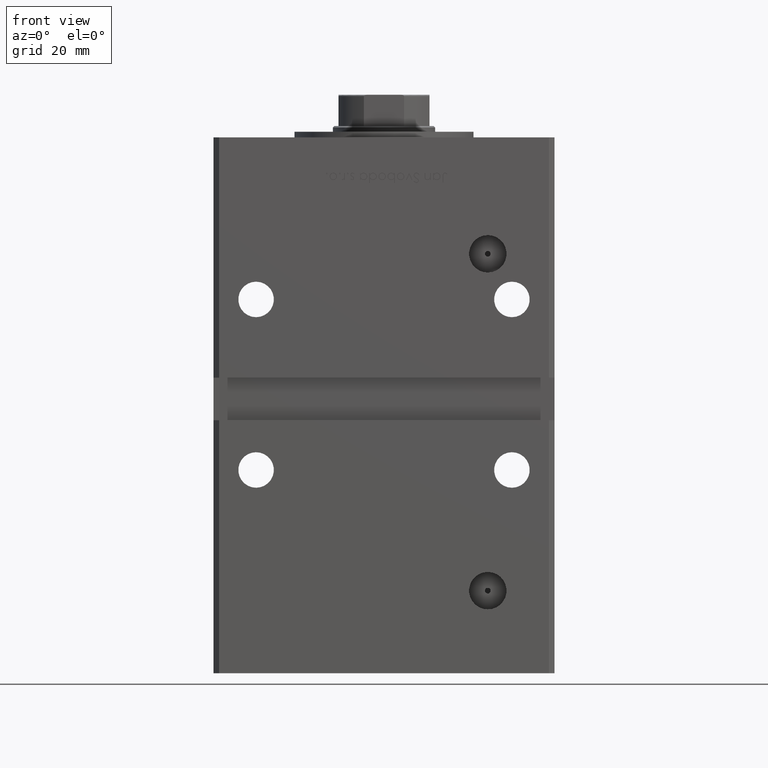
[diagram: clean part render]
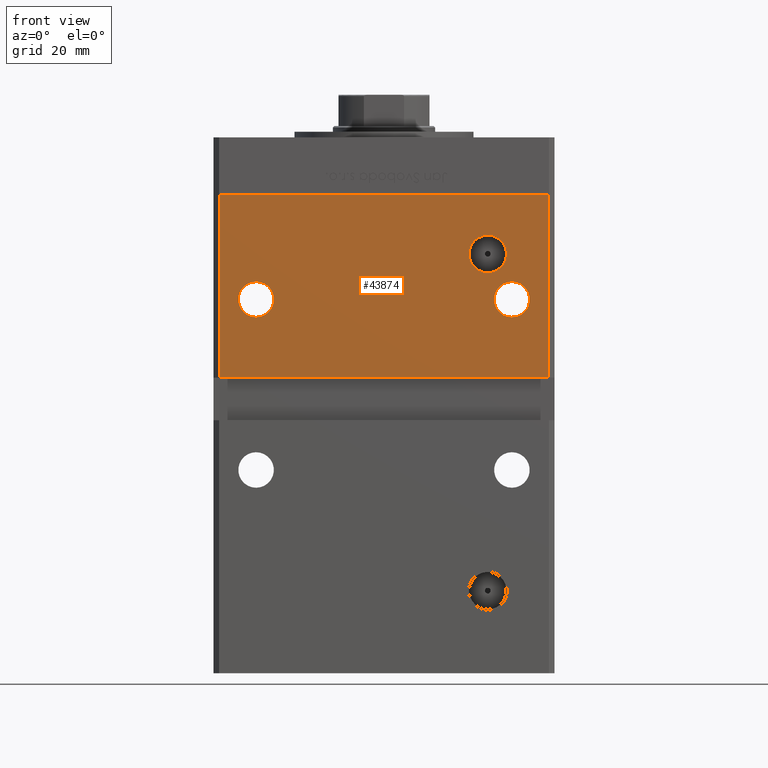
[diagram: same view with one face highlighted and labeled with its STEP entity id]
A machine part, front view. The second image highlights one B-rep face of the part: STEP entity #43874.
In plain terms, the highlighted planar face has unit normal (0, 1, 0).
Its self-contained STEP definition (entity closure, byte-faithful):
#412 = PLANE ( 'NONE',  #14098 ) ;
#826 = LINE ( 'NONE', #17443, #2035 ) ;
#1027 = EDGE_CURVE ( 'NONE', #3265, #3108, #50694, .T. ) ;
#1348 = EDGE_LOOP ( 'NONE', ( #35359, #8984 ) ) ;
#1349 = CARTESIAN_POINT ( 'NONE',  ( -45.00000000000000000, -50.99999999999999289, 105.2500000000000000 ) ) ;
#2035 = VECTOR ( 'NONE', #10198, 1000.000000000000000 ) ;
#3108 = VERTEX_POINT ( 'NONE', #3445 ) ;
#3203 = AXIS2_PLACEMENT_3D ( 'NONE', #32464, #36756, #7816 ) ;
#3265 = VERTEX_POINT ( 'NONE', #50325 ) ;
#3445 = CARTESIAN_POINT ( 'NONE',  ( 57.99999999999997868, -50.99999999999999289, 148.5000000000000000 ) ) ;
#3653 = VERTEX_POINT ( 'NONE', #11358 ) ;
#3760 = EDGE_CURVE ( 'NONE', #3265, #4888, #35739, .T. ) ;
#4209 = ORIENTED_EDGE ( 'NONE', *, *, #37161, .T. ) ;
#4888 = VERTEX_POINT ( 'NONE', #26612 ) ;
#5449 = VECTOR ( 'NONE', #38817, 1000.000000000000000 ) ;
#5486 = AXIS2_PLACEMENT_3D ( 'NONE', #50659, #38589, #9391 ) ;
#7413 = DIRECTION ( 'NONE',  ( 0.000000000000000000, -0.000000000000000000, 1.000000000000000000 ) ) ;
#7647 = CIRCLE ( 'NONE', #28177, 6.579999999999988525 ) ;
#7758 = EDGE_CURVE ( 'NONE', #36962, #49146, #39172, .T. ) ;
#7816 = DIRECTION ( 'NONE',  ( 0.000000000000000000, 0.000000000000000000, -1.000000000000000000 ) ) ;
#8652 = VERTEX_POINT ( 'NONE', #39925 ) ;
#8984 = ORIENTED_EDGE ( 'NONE', *, *, #24116, .T. ) ;
#9391 = DIRECTION ( 'NONE',  ( 0.000000000000000000, 0.000000000000000000, 1.000000000000000000 ) ) ;
#10148 = LINE ( 'NONE', #42847, #5449 ) ;
#10198 = DIRECTION ( 'NONE',  ( -1.000000000000000000, -0.000000000000000000, -0.000000000000000000 ) ) ;
#11358 = CARTESIAN_POINT ( 'NONE',  ( 45.00000000000000000, -50.99999999999999289, 105.2500000000000000 ) ) ;
#11667 = ORIENTED_EDGE ( 'NONE', *, *, #3760, .T. ) ;
#11694 = FACE_BOUND ( 'NONE', #1348, .T. ) ;
#12333 = CIRCLE ( 'NONE', #5486, 6.250000000000005329 ) ;
#12967 = CIRCLE ( 'NONE', #42912, 6.250000000000005329 ) ;
#13383 = EDGE_CURVE ( 'NONE', #49146, #36962, #7647, .T. ) ;
#14098 = AXIS2_PLACEMENT_3D ( 'NONE', #44127, #48945, #7413 ) ;
#14981 = AXIS2_PLACEMENT_3D ( 'NONE', #36953, #41248, #45526 ) ;
#15063 = DIRECTION ( 'NONE',  ( 0.000000000000000000, 1.000000000000000000, 0.000000000000000000 ) ) ;
#15938 = EDGE_LOOP ( 'NONE', ( #34543, #34639 ) ) ;
#16040 = ORIENTED_EDGE ( 'NONE', *, *, #1027, .F. ) ;
#17443 = CARTESIAN_POINT ( 'NONE',  ( -59.99999999999998579, -50.99999999999999289, 83.99999999999998579 ) ) ;
#18573 = DIRECTION ( 'NONE',  ( 0.000000000000000000, 0.000000000000000000, -1.000000000000000000 ) ) ;
#19181 = VERTEX_POINT ( 'NONE', #1349 ) ;
#19864 = DIRECTION ( 'NONE',  ( 0.000000000000000000, 0.000000000000000000, 1.000000000000000000 ) ) ;
#19989 = FACE_OUTER_BOUND ( 'NONE', #37995, .T. ) ;
#20187 = VERTEX_POINT ( 'NONE', #39808 ) ;
#23198 = ORIENTED_EDGE ( 'NONE', *, *, #34782, .T. ) ;
#23852 = VERTEX_POINT ( 'NONE', #34806 ) ;
#24116 = EDGE_CURVE ( 'NONE', #19181, #23852, #12967, .T. ) ;
#25423 = AXIS2_PLACEMENT_3D ( 'NONE', #27905, #15063, #19864 ) ;
#26612 = CARTESIAN_POINT ( 'NONE',  ( -57.99999999999997868, -50.99999999999999289, 83.99999999999998579 ) ) ;
#27905 = CARTESIAN_POINT ( 'NONE',  ( 45.00000000000000000, -50.99999999999999289, 111.5000000000000000 ) ) ;
#28177 = AXIS2_PLACEMENT_3D ( 'NONE', #38690, #31422, #18573 ) ;
#28564 = FACE_BOUND ( 'NONE', #46085, .T. ) ;
#29785 = CARTESIAN_POINT ( 'NONE',  ( -57.99999999999997868, -50.99999999999999289, 148.5000000000000000 ) ) ;
#30256 = EDGE_CURVE ( 'NONE', #3108, #8652, #10148, .T. ) ;
#30938 = CARTESIAN_POINT ( 'NONE',  ( -57.99999999999997868, -50.99999999999999289, 148.5000000000000000 ) ) ;
#31422 = DIRECTION ( 'NONE',  ( -0.000000000000000000, 1.000000000000000000, -0.000000000000000000 ) ) ;
#31464 = EDGE_CURVE ( 'NONE', #8652, #4888, #826, .T. ) ;
#31524 = DIRECTION ( 'NONE',  ( 0.000000000000000000, 1.000000000000000000, 0.000000000000000000 ) ) ;
#32464 = CARTESIAN_POINT ( 'NONE',  ( 36.49999999999997868, -50.99999999999999289, 127.5000000000000000 ) ) ;
#32586 = FACE_BOUND ( 'NONE', #15938, .T. ) ;
#34543 = ORIENTED_EDGE ( 'NONE', *, *, #13383, .T. ) ;
#34639 = ORIENTED_EDGE ( 'NONE', *, *, #7758, .T. ) ;
#34782 = EDGE_CURVE ( 'NONE', #3653, #20187, #36356, .T. ) ;
#34806 = CARTESIAN_POINT ( 'NONE',  ( -45.00000000000000000, -50.99999999999999289, 117.7500000000000142 ) ) ;
#35359 = ORIENTED_EDGE ( 'NONE', *, *, #41086, .T. ) ;
#35713 = VECTOR ( 'NONE', #47284, 1000.000000000000000 ) ;
#35739 = LINE ( 'NONE', #30938, #35713 ) ;
#36356 = CIRCLE ( 'NONE', #14981, 6.250000000000005329 ) ;
#36560 = VECTOR ( 'NONE', #46664, 1000.000000000000000 ) ;
#36668 = ORIENTED_EDGE ( 'NONE', *, *, #31464, .F. ) ;
#36756 = DIRECTION ( 'NONE',  ( -0.000000000000000000, 1.000000000000000000, -0.000000000000000000 ) ) ;
#36953 = CARTESIAN_POINT ( 'NONE',  ( 45.00000000000000000, -50.99999999999999289, 111.5000000000000000 ) ) ;
#36962 = VERTEX_POINT ( 'NONE', #40118 ) ;
#37161 = EDGE_CURVE ( 'NONE', #20187, #3653, #48541, .T. ) ;
#37860 = CARTESIAN_POINT ( 'NONE',  ( 36.49999999999997868, -50.99999999999999289, 120.9200000000000159 ) ) ;
#37995 = EDGE_LOOP ( 'NONE', ( #11667, #36668, #47128, #16040 ) ) ;
#38522 = CARTESIAN_POINT ( 'NONE',  ( -45.00000000000000000, -50.99999999999999289, 111.5000000000000000 ) ) ;
#38589 = DIRECTION ( 'NONE',  ( 0.000000000000000000, 1.000000000000000000, 0.000000000000000000 ) ) ;
#38690 = CARTESIAN_POINT ( 'NONE',  ( 36.49999999999997868, -50.99999999999999289, 127.5000000000000000 ) ) ;
#38817 = DIRECTION ( 'NONE',  ( -0.000000000000000000, -0.000000000000000000, -1.000000000000000000 ) ) ;
#39172 = CIRCLE ( 'NONE', #3203, 6.579999999999988525 ) ;
#39808 = CARTESIAN_POINT ( 'NONE',  ( 45.00000000000000000, -50.99999999999999289, 117.7500000000000142 ) ) ;
#39925 = CARTESIAN_POINT ( 'NONE',  ( 57.99999999999997868, -50.99999999999999289, 83.99999999999998579 ) ) ;
#40118 = CARTESIAN_POINT ( 'NONE',  ( 36.49999999999997868, -50.99999999999999289, 134.0800000000000125 ) ) ;
#41086 = EDGE_CURVE ( 'NONE', #23852, #19181, #12333, .T. ) ;
#41248 = DIRECTION ( 'NONE',  ( 0.000000000000000000, 1.000000000000000000, 0.000000000000000000 ) ) ;
#42847 = CARTESIAN_POINT ( 'NONE',  ( 57.99999999999997868, -50.99999999999999289, 148.5000000000000000 ) ) ;
#42912 = AXIS2_PLACEMENT_3D ( 'NONE', #38522, #31524, #51372 ) ;
#43874 = ADVANCED_FACE ( 'NONE', ( #28564, #11694, #19989, #32586 ), #412, .F. ) ;
#44127 = CARTESIAN_POINT ( 'NONE',  ( -57.99999999999997868, -50.99999999999999289, 148.5000000000000000 ) ) ;
#45526 = DIRECTION ( 'NONE',  ( 0.000000000000000000, 0.000000000000000000, 1.000000000000000000 ) ) ;
#46085 = EDGE_LOOP ( 'NONE', ( #4209, #23198 ) ) ;
#46664 = DIRECTION ( 'NONE',  ( 1.000000000000000000, 0.000000000000000000, 0.000000000000000000 ) ) ;
#47128 = ORIENTED_EDGE ( 'NONE', *, *, #30256, .F. ) ;
#47284 = DIRECTION ( 'NONE',  ( -0.000000000000000000, -0.000000000000000000, -1.000000000000000000 ) ) ;
#48541 = CIRCLE ( 'NONE', #25423, 6.250000000000005329 ) ;
#48945 = DIRECTION ( 'NONE',  ( 0.000000000000000000, 1.000000000000000000, 0.000000000000000000 ) ) ;
#49146 = VERTEX_POINT ( 'NONE', #37860 ) ;
#50325 = CARTESIAN_POINT ( 'NONE',  ( -57.99999999999997868, -50.99999999999999289, 148.5000000000000000 ) ) ;
#50659 = CARTESIAN_POINT ( 'NONE',  ( -45.00000000000000000, -50.99999999999999289, 111.5000000000000000 ) ) ;
#50694 = LINE ( 'NONE', #29785, #36560 ) ;
#51372 = DIRECTION ( 'NONE',  ( 0.000000000000000000, 0.000000000000000000, 1.000000000000000000 ) ) ;